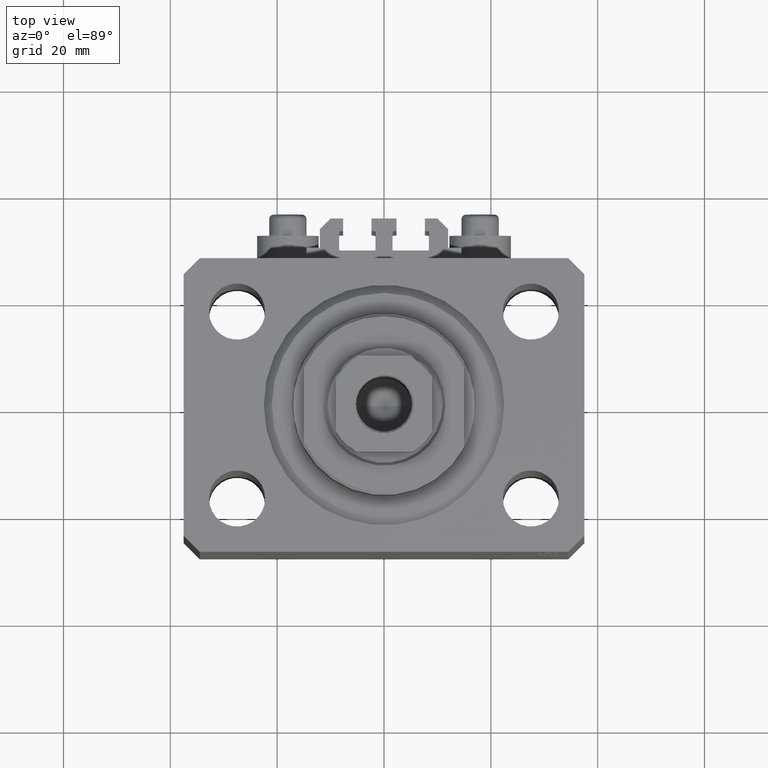
[diagram: clean part render]
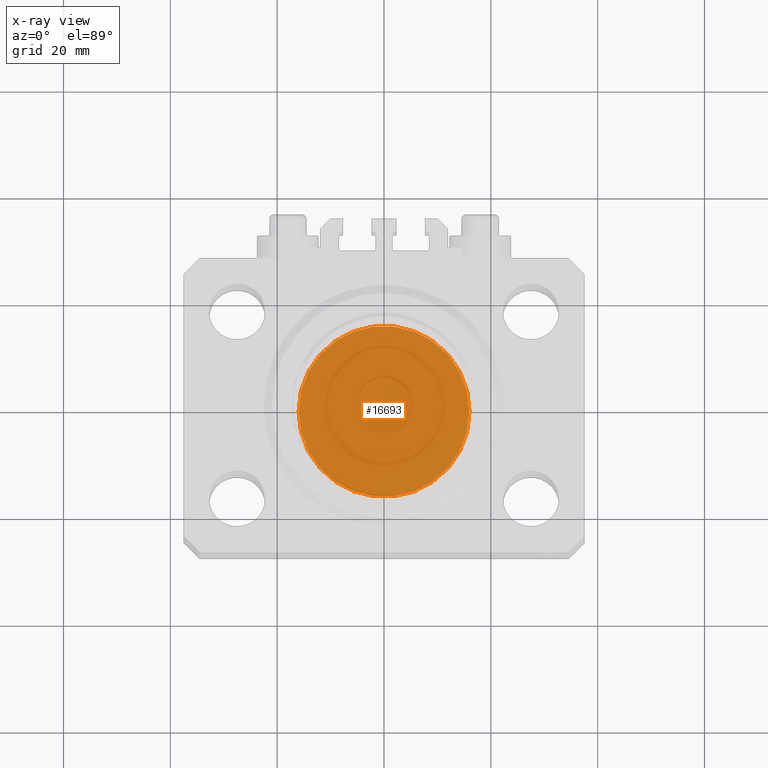
[diagram: x-ray — body ghosted, one internal face saturated and labeled with its STEP entity id]
A machine part, top view, then the same camera in x-ray: the body is ghosted and one INTERNAL B-rep face — a face not visible from any outside direction — is saturated and labeled: STEP entity #16693.
In plain terms, the highlighted planar face has unit normal (0, 0, 1).
Its self-contained STEP definition (entity closure, byte-faithful):
#1849 = DIRECTION ( 'NONE',  ( 0.000000000000000000, 0.000000000000000000, 1.000000000000000000 ) ) ;
#3897 = AXIS2_PLACEMENT_3D ( 'NONE', #35344, #20953, #16864 ) ;
#5531 = EDGE_CURVE ( 'NONE', #24202, #32830, #33032, .T. ) ;
#6320 = EDGE_CURVE ( 'NONE', #32830, #24202, #45287, .T. ) ;
#6792 = AXIS2_PLACEMENT_3D ( 'NONE', #41472, #16265, #8566 ) ;
#8566 = DIRECTION ( 'NONE',  ( 1.000000000000000000, 0.000000000000000000, -0.000000000000000000 ) ) ;
#12802 = CARTESIAN_POINT ( 'NONE',  ( 16.00000000000000000, 1.959434878635765131E-15, 0.000000000000000000 ) ) ;
#16119 = AXIS2_PLACEMENT_3D ( 'NONE', #45077, #1849, #34045 ) ;
#16265 = DIRECTION ( 'NONE',  ( 0.000000000000000000, 0.000000000000000000, 1.000000000000000000 ) ) ;
#16693 = ADVANCED_FACE ( 'NONE', ( #26364 ), #19159, .F. ) ;
#16864 = DIRECTION ( 'NONE',  ( 1.000000000000000000, 0.000000000000000000, 0.000000000000000000 ) ) ;
#19159 = PLANE ( 'NONE',  #6792 ) ;
#20953 = DIRECTION ( 'NONE',  ( 0.000000000000000000, 0.000000000000000000, 1.000000000000000000 ) ) ;
#22573 = CARTESIAN_POINT ( 'NONE',  ( -16.00000000000000000, 0.000000000000000000, 0.000000000000000000 ) ) ;
#24202 = VERTEX_POINT ( 'NONE', #22573 ) ;
#26364 = FACE_OUTER_BOUND ( 'NONE', #27547, .T. ) ;
#27547 = EDGE_LOOP ( 'NONE', ( #40413, #45573 ) ) ;
#32830 = VERTEX_POINT ( 'NONE', #12802 ) ;
#33032 = CIRCLE ( 'NONE', #16119, 16.00000000000000000 ) ;
#34045 = DIRECTION ( 'NONE',  ( 1.000000000000000000, 0.000000000000000000, 0.000000000000000000 ) ) ;
#35344 = CARTESIAN_POINT ( 'NONE',  ( 0.000000000000000000, 0.000000000000000000, 0.000000000000000000 ) ) ;
#40413 = ORIENTED_EDGE ( 'NONE', *, *, #5531, .F. ) ;
#41472 = CARTESIAN_POINT ( 'NONE',  ( 0.000000000000000000, 0.000000000000000000, 0.000000000000000000 ) ) ;
#45077 = CARTESIAN_POINT ( 'NONE',  ( 0.000000000000000000, 0.000000000000000000, 0.000000000000000000 ) ) ;
#45287 = CIRCLE ( 'NONE', #3897, 16.00000000000000000 ) ;
#45573 = ORIENTED_EDGE ( 'NONE', *, *, #6320, .F. ) ;